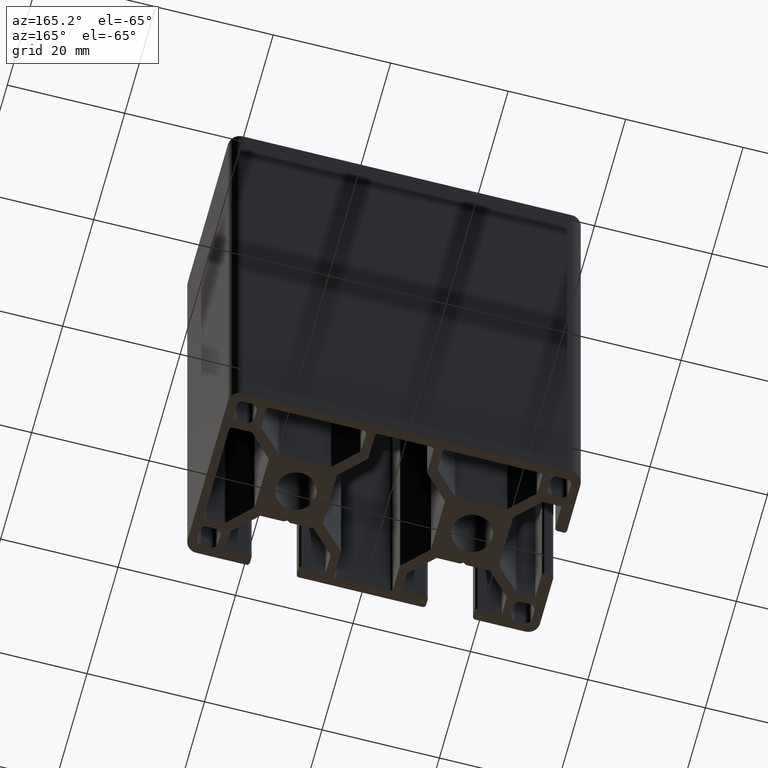
[diagram: clean part render]
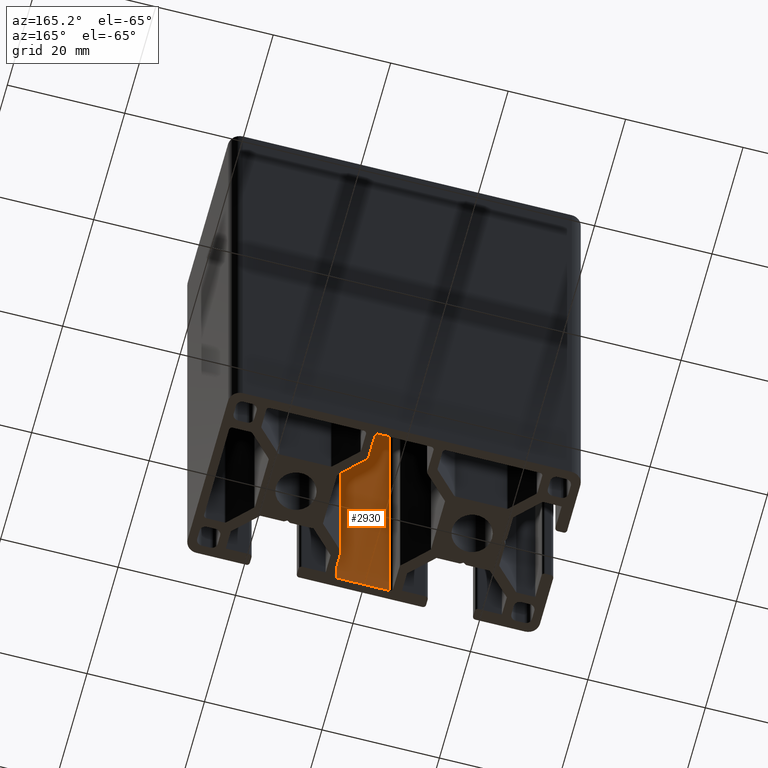
[diagram: same view with one face highlighted and labeled with its STEP entity id]
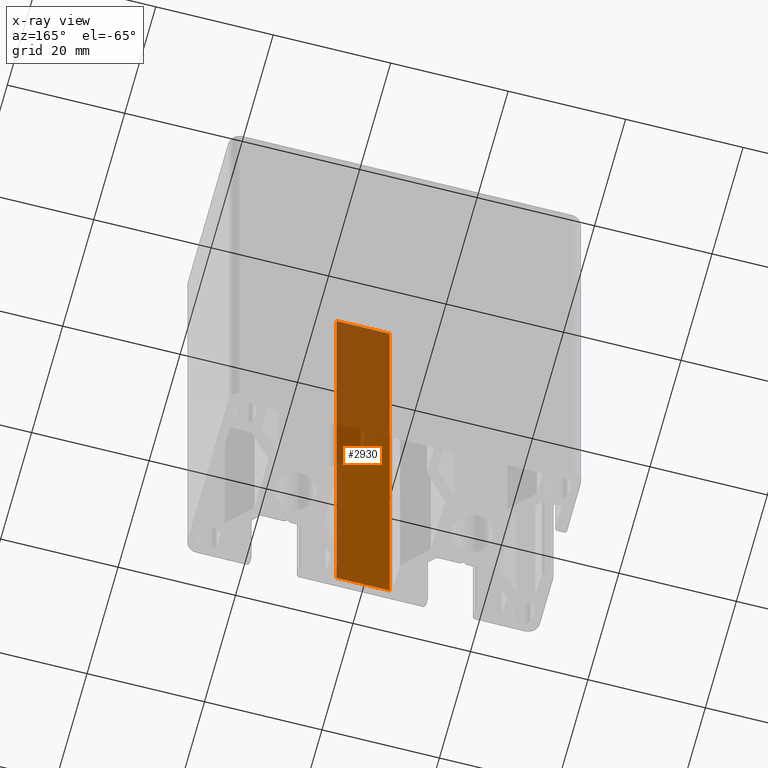
[diagram: x-ray of the same camera — body ghosted, the highlighted face saturated]
A machine part, auxiliary view. The second image highlights one B-rep face of the part: STEP entity #2930.
The next image is the same camera in x-ray: the body ghosted, the highlighted face saturated — about 51% of this face is hidden behind the body in this view.
In plain terms, the highlighted planar face has unit normal (0, -1, 0).
Its self-contained STEP definition (entity closure, byte-faithful):
#232=FACE_OUTER_BOUND('',#383,.T.);
#383=EDGE_LOOP('',(#1994,#1995,#1996,#1997));
#570=LINE('',#4301,#895);
#571=LINE('',#4304,#896);
#572=LINE('',#4306,#897);
#573=LINE('',#4307,#898);
#895=VECTOR('',#3432,100.);
#896=VECTOR('',#3435,9.00000618999961);
#897=VECTOR('',#3436,9.00000618999961);
#898=VECTOR('',#3437,100.);
#1221=VERTEX_POINT('',#4297);
#1222=VERTEX_POINT('',#4299);
#1223=VERTEX_POINT('',#4303);
#1224=VERTEX_POINT('',#4305);
#1534=EDGE_CURVE('',#1222,#1221,#570,.T.);
#1535=EDGE_CURVE('',#1221,#1223,#571,.T.);
#1536=EDGE_CURVE('',#1224,#1222,#572,.T.);
#1537=EDGE_CURVE('',#1224,#1223,#573,.T.);
#1994=ORIENTED_EDGE('',*,*,#1535,.F.);
#1995=ORIENTED_EDGE('',*,*,#1534,.F.);
#1996=ORIENTED_EDGE('',*,*,#1536,.F.);
#1997=ORIENTED_EDGE('',*,*,#1537,.T.);
#2831=PLANE('',#3099);
#2930=ADVANCED_FACE('',(#232),#2831,.F.);
#3099=AXIS2_PLACEMENT_3D('',#4302,#3433,#3434);
#3432=DIRECTION('',(0.,0.,1.));
#3433=DIRECTION('center_axis',(0.,-1.,0.));
#3434=DIRECTION('ref_axis',(1.,0.,0.));
#3435=DIRECTION('',(-1.,0.,0.));
#3436=DIRECTION('',(1.,0.,0.));
#3437=DIRECTION('',(0.,0.,1.));
#4297=CARTESIAN_POINT('',(4.50000222000002,-13.4999977629999,100.));
#4299=CARTESIAN_POINT('',(4.50000222000002,-13.4999977629999,0.));
#4301=CARTESIAN_POINT('',(4.50000222000002,-13.4999977629999,0.));
#4302=CARTESIAN_POINT('Origin',(-4.50000396999959,-13.4999977629999,0.));
#4303=CARTESIAN_POINT('',(-4.50000396999959,-13.4999977629999,100.));
#4304=CARTESIAN_POINT('',(-2.25000364999979,-13.4999977629999,100.));
#4305=CARTESIAN_POINT('',(-4.50000396999959,-13.4999977629999,0.));
#4306=CARTESIAN_POINT('',(-2.25000364999979,-13.4999977629999,0.));
#4307=CARTESIAN_POINT('',(-4.50000396999959,-13.4999977629999,0.));